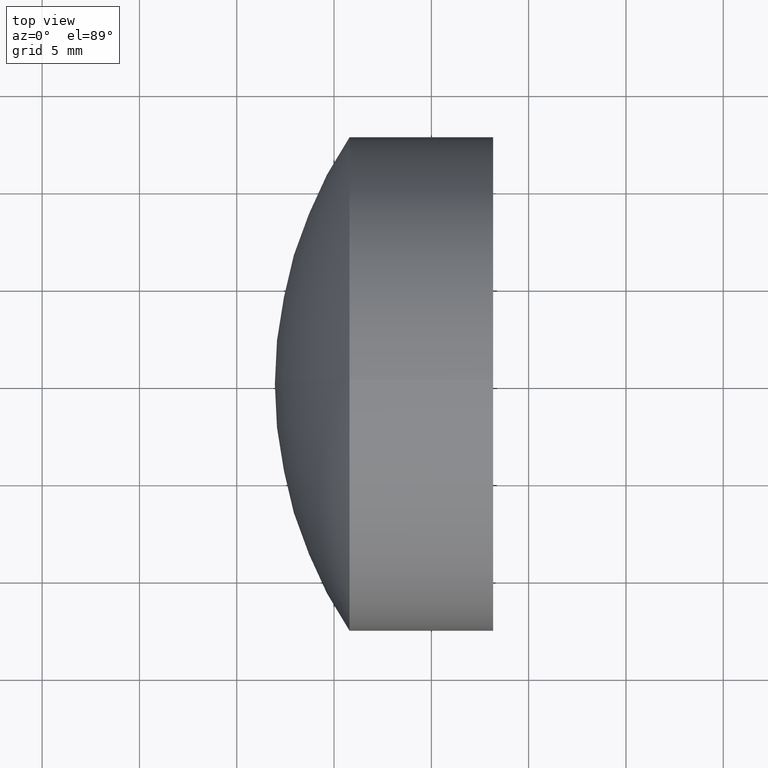
[diagram: clean part render]
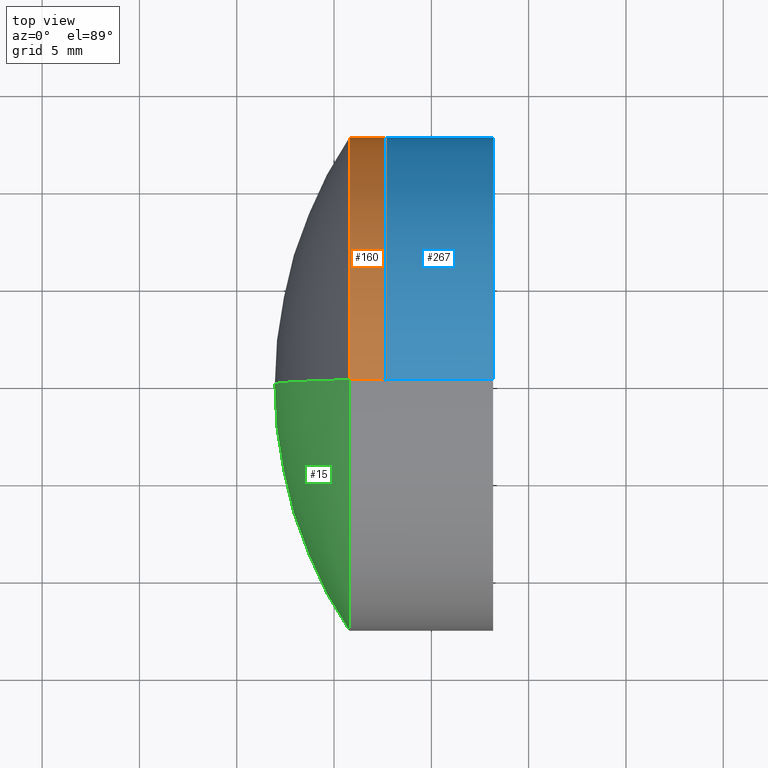
[diagram: same view with three faces highlighted in distinct colors, each labeled with its STEP entity id]
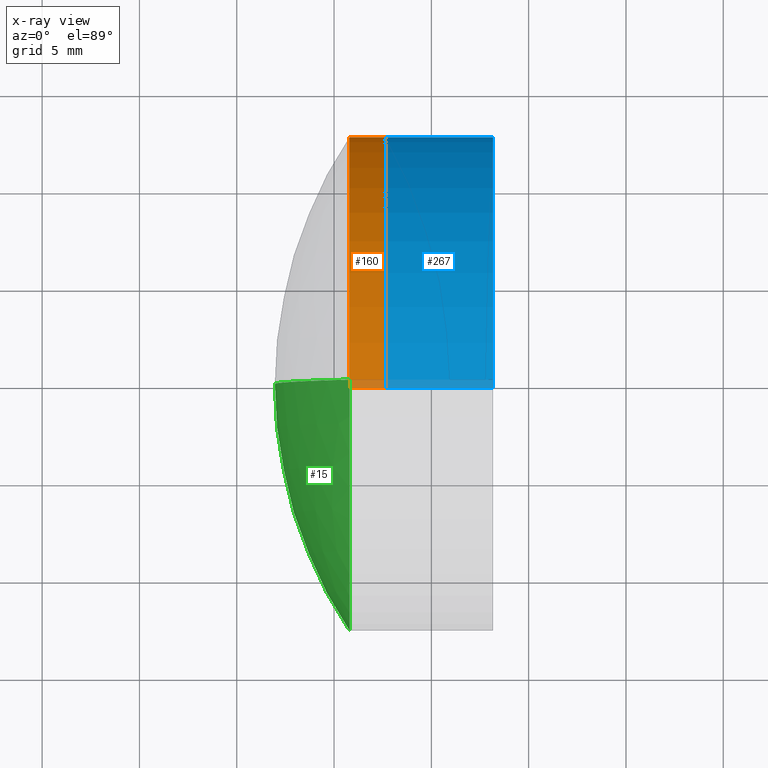
[diagram: x-ray of the same camera — body ghosted, the three highlighted faces saturated]
A machine part, top view with three faces highlighted in distinct colors.
The next image is the same camera in x-ray (body ghosted, the three faces saturated) — at least one of them is partly hidden behind the body in this view.
Their STEP definitions:

[orange] entity #160 — the highlighted cylindrical surface (partial cylindrical patch) has radius 12.7 mm, axis along (-1, -0, -0).
#7 = VERTEX_POINT ( 'NONE', #99 ) ;
#9 = DIRECTION ( 'NONE',  ( -1.000000000000000000, -0.0000000000000000000, -0.0000000000000000000 ) ) ;
#14 = DIRECTION ( 'NONE',  ( 0.0000000000000000000, 0.0000000000000000000, 1.000000000000000000 ) ) ;
#19 = EDGE_LOOP ( 'NONE', ( #157, #124, #223, #60 ) ) ;
#20 = VERTEX_POINT ( 'NONE', #103 ) ;
#27 = EDGE_CURVE ( 'NONE', #20, #182, #229, .T. ) ;
#31 = EDGE_CURVE ( 'NONE', #20, #146, #97, .T. ) ;
#38 = FACE_OUTER_BOUND ( 'NONE', #19, .T. ) ;
#44 = CARTESIAN_POINT ( 'NONE',  ( 35.79561500476388900, 0.0000000000000000000, 12.69999999999999600 ) ) ;
#48 = EDGE_CURVE ( 'NONE', #182, #7, #51, .T. ) ;
#51 = LINE ( 'NONE', #248, #313 ) ;
#60 = ORIENTED_EDGE ( 'NONE', *, *, #31, .F. ) ;
#84 = DIRECTION ( 'NONE',  ( -1.000000000000000000, -0.0000000000000000000, -0.0000000000000000000 ) ) ;
#92 = EDGE_CURVE ( 'NONE', #146, #7, #306, .T. ) ;
#97 = LINE ( 'NONE', #105, #110 ) ;
#99 = CARTESIAN_POINT ( 'NONE',  ( 35.79561500476388900, 1.555301434917138000E-015, -12.69999999999999600 ) ) ;
#103 = CARTESIAN_POINT ( 'NONE',  ( 37.62897246326265600, 0.0000000000000000000, 12.69999999999999900 ) ) ;
#105 = CARTESIAN_POINT ( 'NONE',  ( -0.8160621761658039000, 0.0000000000000000000, 12.69999999999999900 ) ) ;
#110 = VECTOR ( 'NONE', #346, 1000.000000000000000 ) ;
#124 = ORIENTED_EDGE ( 'NONE', *, *, #48, .T. ) ;
#137 = AXIS2_PLACEMENT_3D ( 'NONE', #277, #9, #321 ) ;
#146 = VERTEX_POINT ( 'NONE', #44 ) ;
#157 = ORIENTED_EDGE ( 'NONE', *, *, #27, .T. ) ;
#160 = ADVANCED_FACE ( 'NONE', ( #38 ), #345, .T. ) ;
#167 = AXIS2_PLACEMENT_3D ( 'NONE', #239, #280, #14 ) ;
#182 = VERTEX_POINT ( 'NONE', #279 ) ;
#194 = DIRECTION ( 'NONE',  ( 0.0000000000000000000, 0.0000000000000000000, 1.000000000000000000 ) ) ;
#223 = ORIENTED_EDGE ( 'NONE', *, *, #92, .F. ) ;
#229 = CIRCLE ( 'NONE', #167, 12.69999999999999900 ) ;
#239 = CARTESIAN_POINT ( 'NONE',  ( 37.62897246326265600, 0.0000000000000000000, 0.0000000000000000000 ) ) ;
#240 = AXIS2_PLACEMENT_3D ( 'NONE', #322, #338, #194 ) ;
#248 = CARTESIAN_POINT ( 'NONE',  ( -0.8160621761658039000, 1.555301434917138400E-015, -12.69999999999999900 ) ) ;
#277 = CARTESIAN_POINT ( 'NONE',  ( -0.8160621761658039000, 0.0000000000000000000, 0.0000000000000000000 ) ) ;
#279 = CARTESIAN_POINT ( 'NONE',  ( 37.62897246326265600, 1.555301434917138400E-015, -12.69999999999999900 ) ) ;
#280 = DIRECTION ( 'NONE',  ( -1.000000000000000000, -0.0000000000000000000, -0.0000000000000000000 ) ) ;
#306 = CIRCLE ( 'NONE', #240, 12.69999999999999900 ) ;
#313 = VECTOR ( 'NONE', #84, 1000.000000000000000 ) ;
#321 = DIRECTION ( 'NONE',  ( 0.0000000000000000000, 0.0000000000000000000, 1.000000000000000000 ) ) ;
#322 = CARTESIAN_POINT ( 'NONE',  ( 35.79561500476388900, 0.0000000000000000000, 0.0000000000000000000 ) ) ;
#338 = DIRECTION ( 'NONE',  ( -1.000000000000000000, -0.0000000000000000000, -0.0000000000000000000 ) ) ;
#345 = CYLINDRICAL_SURFACE ( 'NONE', #137, 12.69999999999999900 ) ;
#346 = DIRECTION ( 'NONE',  ( -1.000000000000000000, -0.0000000000000000000, -0.0000000000000000000 ) ) ;

[blue] entity #267 — the highlighted cylindrical surface (partial cylindrical patch) has radius 12.7 mm, axis along (-1, -0, -0).
#1 = DIRECTION ( 'NONE',  ( -1.000000000000000000, -0.0000000000000000000, -0.0000000000000000000 ) ) ;
#5 = DIRECTION ( 'NONE',  ( 0.0000000000000000000, 0.0000000000000000000, 1.000000000000000000 ) ) ;
#8 = ORIENTED_EDGE ( 'NONE', *, *, #149, .T. ) ;
#11 = DIRECTION ( 'NONE',  ( -1.000000000000000000, -0.0000000000000000000, -0.0000000000000000000 ) ) ;
#13 = DIRECTION ( 'NONE',  ( 0.0000000000000000000, 0.0000000000000000000, 1.000000000000000000 ) ) ;
#57 = EDGE_CURVE ( 'NONE', #255, #176, #266, .T. ) ;
#70 = CARTESIAN_POINT ( 'NONE',  ( 43.17435840764294100, -1.555301434917158400E-015, 12.70000000000016300 ) ) ;
#73 = CARTESIAN_POINT ( 'NONE',  ( 37.62897246326266300, 0.0000000000000000000, 12.69999999999999600 ) ) ;
#77 = VERTEX_POINT ( 'NONE', #70 ) ;
#106 = CYLINDRICAL_SURFACE ( 'NONE', #265, 12.69999999999999600 ) ;
#123 = VECTOR ( 'NONE', #249, 1000.000000000000000 ) ;
#143 = AXIS2_PLACEMENT_3D ( 'NONE', #150, #198, #13 ) ;
#149 = EDGE_CURVE ( 'NONE', #77, #255, #237, .T. ) ;
#150 = CARTESIAN_POINT ( 'NONE',  ( 37.62897246326266300, 0.0000000000000000000, 0.0000000000000000000 ) ) ;
#155 = DIRECTION ( 'NONE',  ( 0.0000000000000000000, 0.0000000000000000000, 1.000000000000000000 ) ) ;
#156 = VECTOR ( 'NONE', #301, 1000.000000000000000 ) ;
#158 = EDGE_CURVE ( 'NONE', #168, #176, #232, .T. ) ;
#161 = FACE_OUTER_BOUND ( 'NONE', #294, .T. ) ;
#168 = VERTEX_POINT ( 'NONE', #73 ) ;
#176 = VERTEX_POINT ( 'NONE', #201 ) ;
#178 = CARTESIAN_POINT ( 'NONE',  ( 43.17435840764293400, 0.0000000000000000000, 0.0000000000000000000 ) ) ;
#179 = CARTESIAN_POINT ( 'NONE',  ( -0.5519199926577972300, 0.0000000000000000000, 12.69999999999999600 ) ) ;
#198 = DIRECTION ( 'NONE',  ( -1.000000000000000000, -0.0000000000000000000, -0.0000000000000000000 ) ) ;
#201 = CARTESIAN_POINT ( 'NONE',  ( 37.62897246326266300, 1.555301434917138000E-015, -12.69999999999999600 ) ) ;
#213 = ORIENTED_EDGE ( 'NONE', *, *, #281, .F. ) ;
#219 = LINE ( 'NONE', #179, #156 ) ;
#232 = CIRCLE ( 'NONE', #143, 12.69999999999999600 ) ;
#237 = CIRCLE ( 'NONE', #269, 12.69999999999999600 ) ;
#249 = DIRECTION ( 'NONE',  ( -1.000000000000000000, -0.0000000000000000000, -0.0000000000000000000 ) ) ;
#255 = VERTEX_POINT ( 'NONE', #335 ) ;
#264 = CARTESIAN_POINT ( 'NONE',  ( -0.5519199926577972300, 1.555301434917138000E-015, -12.69999999999999600 ) ) ;
#265 = AXIS2_PLACEMENT_3D ( 'NONE', #347, #1, #155 ) ;
#266 = LINE ( 'NONE', #264, #123 ) ;
#267 = ADVANCED_FACE ( 'NONE', ( #161 ), #106, .T. ) ;
#269 = AXIS2_PLACEMENT_3D ( 'NONE', #178, #11, #5 ) ;
#281 = EDGE_CURVE ( 'NONE', #77, #168, #219, .T. ) ;
#294 = EDGE_LOOP ( 'NONE', ( #8, #339, #319, #213 ) ) ;
#301 = DIRECTION ( 'NONE',  ( -1.000000000000000000, -0.0000000000000000000, -0.0000000000000000000 ) ) ;
#319 = ORIENTED_EDGE ( 'NONE', *, *, #158, .F. ) ;
#335 = CARTESIAN_POINT ( 'NONE',  ( 43.17435840764294100, 0.0000000000000000000, -12.70000000000016300 ) ) ;
#339 = ORIENTED_EDGE ( 'NONE', *, *, #57, .T. ) ;
#347 = CARTESIAN_POINT ( 'NONE',  ( -0.5519199926577972300, 0.0000000000000000000, 0.0000000000000000000 ) ) ;

[green] entity #15 — the highlighted spherical surface has radius 22.94 mm.
#7 = VERTEX_POINT ( 'NONE', #99 ) ;
#15 = ADVANCED_FACE ( 'NONE', ( #192 ), #193, .T. ) ;
#16 = AXIS2_PLACEMENT_3D ( 'NONE', #311, #140, #153 ) ;
#30 = CARTESIAN_POINT ( 'NONE',  ( 35.79561500476388900, 0.0000000000000000000, 0.0000000000000000000 ) ) ;
#33 = CARTESIAN_POINT ( 'NONE',  ( 54.89937379721099800, 0.0000000000000000000, -4.336808689942017700E-016 ) ) ;
#44 = CARTESIAN_POINT ( 'NONE',  ( 35.79561500476388900, 0.0000000000000000000, 12.69999999999999600 ) ) ;
#47 = CARTESIAN_POINT ( 'NONE',  ( 31.95937379721099000, 0.0000000000000000000, 9.709890096278126700E-016 ) ) ;
#55 = ORIENTED_EDGE ( 'NONE', *, *, #336, .T. ) ;
#68 = VERTEX_POINT ( 'NONE', #47 ) ;
#80 = EDGE_CURVE ( 'NONE', #146, #68, #320, .T. ) ;
#88 = ORIENTED_EDGE ( 'NONE', *, *, #142, .F. ) ;
#95 = DIRECTION ( 'NONE',  ( 0.0000000000000000000, 0.0000000000000000000, 1.000000000000000000 ) ) ;
#99 = CARTESIAN_POINT ( 'NONE',  ( 35.79561500476388900, 1.555301434917138000E-015, -12.69999999999999600 ) ) ;
#104 = CIRCLE ( 'NONE', #324, 12.69999999999999900 ) ;
#136 = AXIS2_PLACEMENT_3D ( 'NONE', #181, #228, #163 ) ;
#140 = DIRECTION ( 'NONE',  ( 0.0000000000000000000, -1.000000000000000000, 0.0000000000000000000 ) ) ;
#142 = EDGE_CURVE ( 'NONE', #7, #68, #211, .T. ) ;
#146 = VERTEX_POINT ( 'NONE', #44 ) ;
#153 = DIRECTION ( 'NONE',  ( 0.0000000000000000000, 0.0000000000000000000, -1.000000000000000000 ) ) ;
#163 = DIRECTION ( 'NONE',  ( 0.0000000000000000000, -1.224646799147353200E-016, 1.000000000000000000 ) ) ;
#181 = CARTESIAN_POINT ( 'NONE',  ( 54.89937379721099800, 0.0000000000000000000, -4.336808689942017700E-016 ) ) ;
#192 = FACE_OUTER_BOUND ( 'NONE', #199, .T. ) ;
#193 = SPHERICAL_SURFACE ( 'NONE', #210, 22.94000000000000500 ) ;
#199 = EDGE_LOOP ( 'NONE', ( #88, #55, #233 ) ) ;
#210 = AXIS2_PLACEMENT_3D ( 'NONE', #33, #341, #95 ) ;
#211 = CIRCLE ( 'NONE', #136, 22.94000000000000500 ) ;
#218 = DIRECTION ( 'NONE',  ( -1.000000000000000000, -0.0000000000000000000, -0.0000000000000000000 ) ) ;
#224 = DIRECTION ( 'NONE',  ( 0.0000000000000000000, 0.0000000000000000000, 1.000000000000000000 ) ) ;
#228 = DIRECTION ( 'NONE',  ( -0.0000000000000000000, 1.000000000000000000, 1.224646799147353200E-016 ) ) ;
#233 = ORIENTED_EDGE ( 'NONE', *, *, #80, .T. ) ;
#311 = CARTESIAN_POINT ( 'NONE',  ( 54.89937379721099800, 0.0000000000000000000, -4.336808689942017700E-016 ) ) ;
#320 = CIRCLE ( 'NONE', #16, 22.94000000000000500 ) ;
#324 = AXIS2_PLACEMENT_3D ( 'NONE', #30, #218, #224 ) ;
#336 = EDGE_CURVE ( 'NONE', #7, #146, #104, .T. ) ;
#341 = DIRECTION ( 'NONE',  ( 0.0000000000000000000, 1.000000000000000000, 0.0000000000000000000 ) ) ;